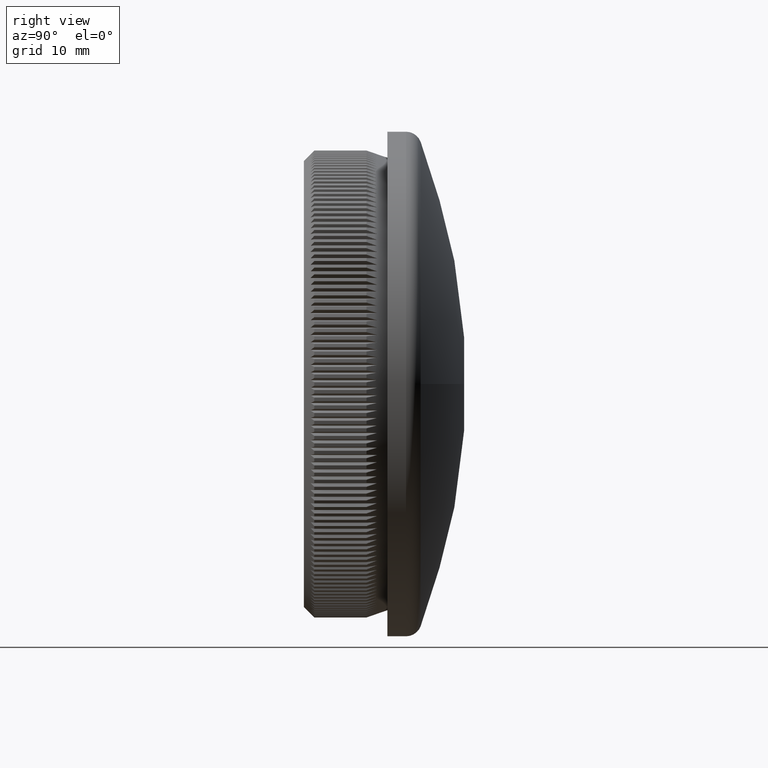
[diagram: clean part render]
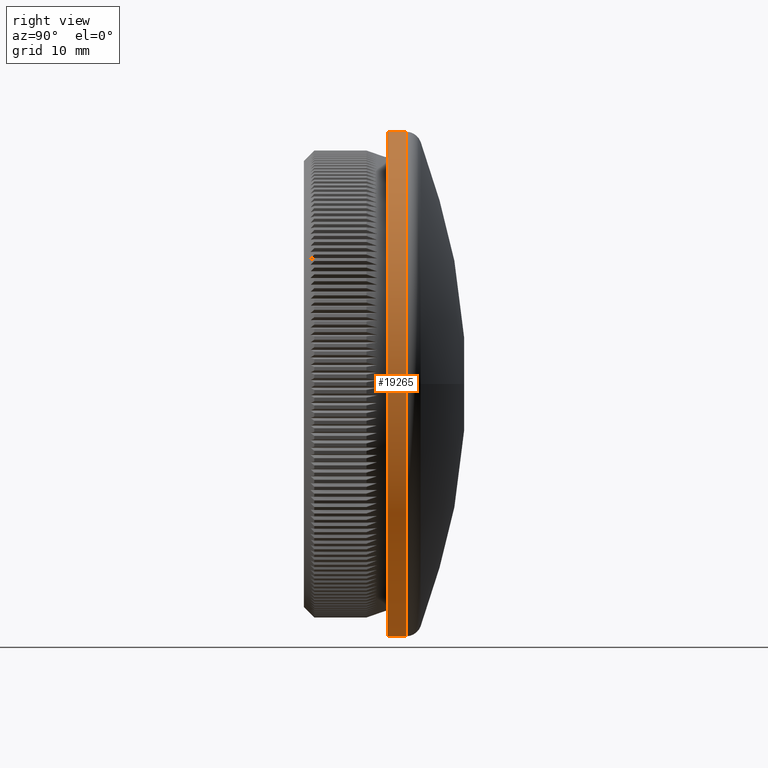
[diagram: same view with one face highlighted and labeled with its STEP entity id]
A machine part, right view. The second image highlights one B-rep face of the part: STEP entity #19265.
In plain terms, the highlighted cylindrical surface (partial cylindrical patch) has radius 24.15 mm, axis along (-0, -1, -0).
Its self-contained STEP definition (entity closure, byte-faithful):
#699 = EDGE_LOOP ( 'NONE', ( #8701, #20393, #12952, #10203 ) ) ;
#2863 = CARTESIAN_POINT ( 'NONE',  ( 2.957522019940858300E-015, 0.0000000000000000000, 24.15000000000000200 ) ) ;
#2894 = VERTEX_POINT ( 'NONE', #6538 ) ;
#3882 = VERTEX_POINT ( 'NONE', #9230 ) ;
#3921 = EDGE_CURVE ( 'NONE', #32610, #3882, #27763, .T. ) ;
#3997 = DIRECTION ( 'NONE',  ( 0.0000000000000000000, 0.0000000000000000000, -1.000000000000000000 ) ) ;
#4911 = LINE ( 'NONE', #24541, #20361 ) ;
#5394 = DIRECTION ( 'NONE',  ( -0.0000000000000000000, -1.000000000000000000, -0.0000000000000000000 ) ) ;
#5527 = DIRECTION ( 'NONE',  ( -0.0000000000000000000, -1.000000000000000000, -0.0000000000000000000 ) ) ;
#5774 = EDGE_CURVE ( 'NONE', #2894, #8538, #24910, .T. ) ;
#6538 = CARTESIAN_POINT ( 'NONE',  ( 0.0000000000000000000, 8.000000000000000000, -24.14999999999999900 ) ) ;
#7549 = CARTESIAN_POINT ( 'NONE',  ( 0.0000000000000000000, 0.0000000000000000000, 0.0000000000000000000 ) ) ;
#8524 = CARTESIAN_POINT ( 'NONE',  ( 0.0000000000000000000, 9.780020886796899400, -24.15000000000000200 ) ) ;
#8538 = VERTEX_POINT ( 'NONE', #29230 ) ;
#8701 = ORIENTED_EDGE ( 'NONE', *, *, #3921, .T. ) ;
#9230 = CARTESIAN_POINT ( 'NONE',  ( 2.957522019940858300E-015, 9.780020886796899400, 24.15000000000000200 ) ) ;
#10203 = ORIENTED_EDGE ( 'NONE', *, *, #23935, .F. ) ;
#10309 = DIRECTION ( 'NONE',  ( 0.0000000000000000000, 0.0000000000000000000, -1.000000000000000000 ) ) ;
#11647 = CARTESIAN_POINT ( 'NONE',  ( 0.0000000000000000000, 9.780020886796899400, 0.0000000000000000000 ) ) ;
#12952 = ORIENTED_EDGE ( 'NONE', *, *, #5774, .F. ) ;
#13020 = DIRECTION ( 'NONE',  ( 0.0000000000000000000, 0.0000000000000000000, -1.000000000000000000 ) ) ;
#13213 = AXIS2_PLACEMENT_3D ( 'NONE', #7549, #14823, #10309 ) ;
#14823 = DIRECTION ( 'NONE',  ( -0.0000000000000000000, -1.000000000000000000, -0.0000000000000000000 ) ) ;
#15361 = AXIS2_PLACEMENT_3D ( 'NONE', #23039, #5394, #13020 ) ;
#17987 = VECTOR ( 'NONE', #5527, 1000.000000000000000 ) ;
#19265 = ADVANCED_FACE ( 'NONE', ( #25733 ), #25701, .T. ) ;
#20361 = VECTOR ( 'NONE', #24641, 1000.000000000000000 ) ;
#20393 = ORIENTED_EDGE ( 'NONE', *, *, #31795, .T. ) ;
#23039 = CARTESIAN_POINT ( 'NONE',  ( 0.0000000000000000000, 8.000000000000000000, 0.0000000000000000000 ) ) ;
#23571 = LINE ( 'NONE', #2863, #17987 ) ;
#23935 = EDGE_CURVE ( 'NONE', #32610, #2894, #4911, .T. ) ;
#24541 = CARTESIAN_POINT ( 'NONE',  ( 0.0000000000000000000, 0.0000000000000000000, -24.15000000000000200 ) ) ;
#24641 = DIRECTION ( 'NONE',  ( -0.0000000000000000000, -1.000000000000000000, -0.0000000000000000000 ) ) ;
#24910 = CIRCLE ( 'NONE', #15361, 24.14999999999999900 ) ;
#25701 = CYLINDRICAL_SURFACE ( 'NONE', #13213, 24.15000000000000200 ) ;
#25733 = FACE_OUTER_BOUND ( 'NONE', #699, .T. ) ;
#27763 = CIRCLE ( 'NONE', #32242, 24.15000000000000200 ) ;
#29230 = CARTESIAN_POINT ( 'NONE',  ( 2.957522019940858300E-015, 8.000000000000000000, 24.14999999999999900 ) ) ;
#29358 = DIRECTION ( 'NONE',  ( -0.0000000000000000000, -1.000000000000000000, -0.0000000000000000000 ) ) ;
#31795 = EDGE_CURVE ( 'NONE', #3882, #8538, #23571, .T. ) ;
#32242 = AXIS2_PLACEMENT_3D ( 'NONE', #11647, #29358, #3997 ) ;
#32610 = VERTEX_POINT ( 'NONE', #8524 ) ;